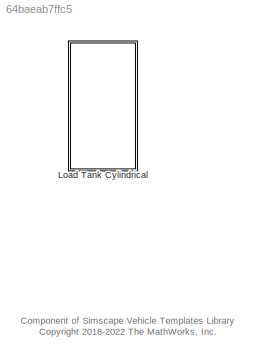
MODEL slx_64baeab7ffc5
KIND library
CONFIG AbsTol = auto
CONFIG EnableMultiTasking = off
CONFIG FixedStep = auto
CONFIG MaxStep = auto
CONFIG MinStep = auto
CONFIG RelTol = 1e-3
CONFIG SampleTimeConstraint = Unconstrained
CONFIG SolverName = VariableStepAuto
CONFIG StartTime = 0.0
CONFIG StopTime = 10.0
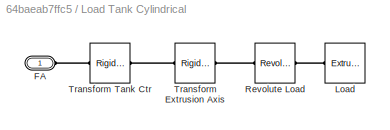
BLOCK [SubSystem] Load Tank Cylindrical
  Ports = [0, 0, 0, 0, 0, 1]
  RequestExecContextInheritance = off
BLOCK [PMIOPort] Load Tank Cylindrical/FA
  Side = Left
BLOCK [Reference] Load Tank Cylindrical/Load  REF=sm_lib/Body Elements/Extruded Solid
  Ports = [0, 0, 0, 0, 0, 0, 1]
  SourceBlock = sm_lib/Body Elements/Extruded Solid
  SourceProductBaseCode = MS
  SourceType = Extruded Solid
BLOCK [Reference] Load Tank Cylindrical/Revolute Load  REF=sm_lib/Joints/Revolute Joint
  Ports = [0, 0, 0, 0, 0, 1, 1]
  SourceBlock = sm_lib/Joints/Revolute Joint
  SourceProductBaseCode = MS
  SourceType = Revolute Joint
BLOCK [Reference] Load Tank Cylindrical/Transform Extrusion Axis  REF=sm_lib/Frames and
Transforms/Rigid
Transform
  Ports = [0, 0, 0, 0, 0, 1, 1]
  SourceBlock = sm_lib/Frames and\nTransforms/Rigid\nTransform
  SourceProductBaseCode = MS
  SourceType = Rigid\nTransform
BLOCK [Reference] Load Tank Cylindrical/Transform Tank Ctr  REF=sm_lib/Frames and
Transforms/Rigid
Transform
  Ports = [0, 0, 0, 0, 0, 1, 1]
  SourceBlock = sm_lib/Frames and\nTransforms/Rigid\nTransform
  SourceProductBaseCode = MS
  SourceType = Rigid\nTransform
ANNOTATION (root): Component of Simscape Vehicle Templates Library <copyright redacted>
PLINE Load Tank Cylindrical/FA:RConn1 -- Load Tank Cylindrical/Transform Tank Ctr:LConn1
PLINE Load Tank Cylindrical/Load:RConn1 -- Load Tank Cylindrical/Revolute Load:RConn1
PLINE Load Tank Cylindrical/Revolute Load:LConn1 -- Load Tank Cylindrical/Transform Extrusion Axis:RConn1
PLINE Load Tank Cylindrical/Transform Extrusion Axis:LConn1 -- Load Tank Cylindrical/Transform Tank Ctr:RConn1
